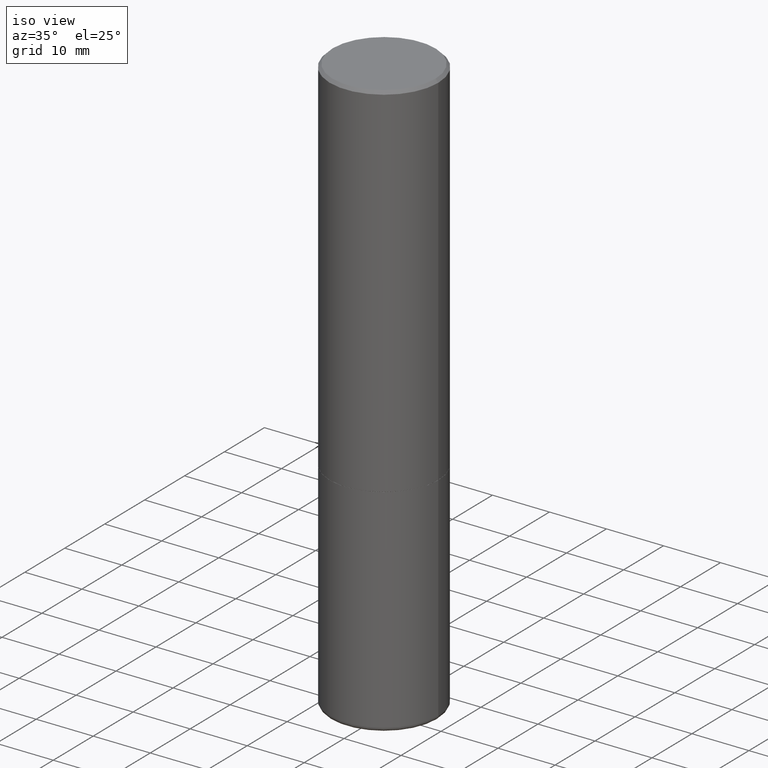
[diagram: clean part render]
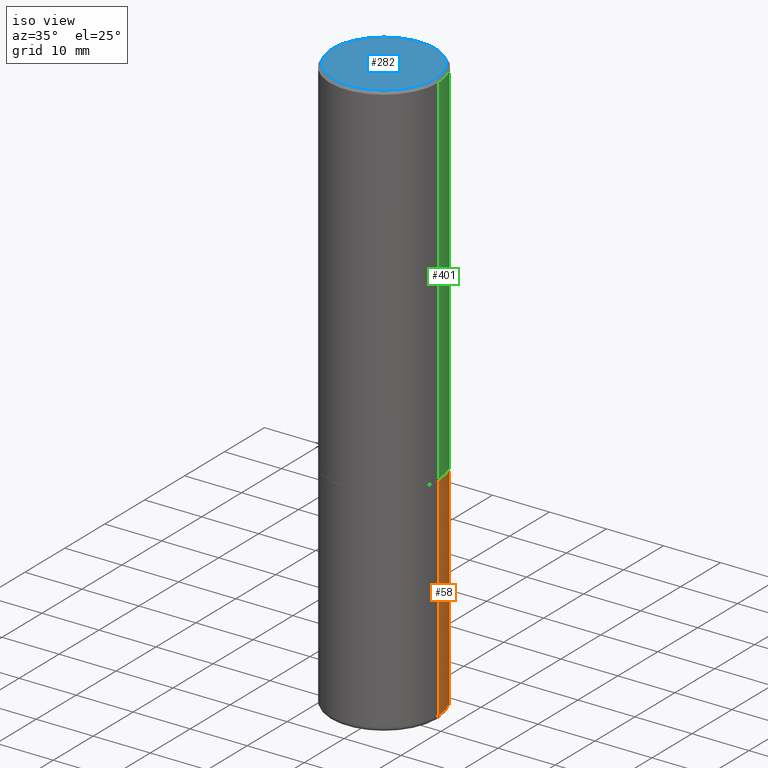
[diagram: same view with three faces highlighted in distinct colors, each labeled with its STEP entity id]
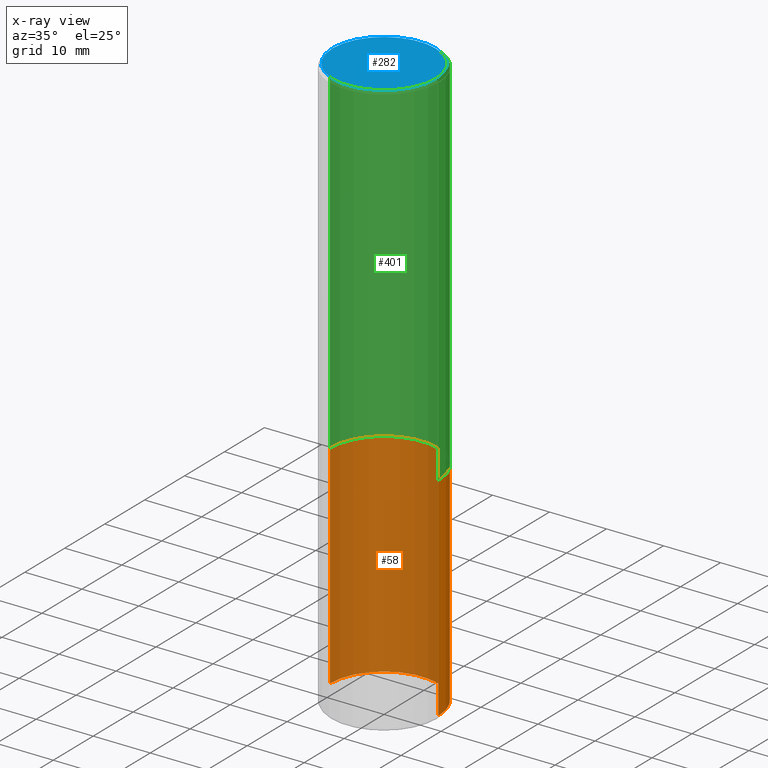
[diagram: x-ray of the same camera — body ghosted, the three highlighted faces saturated]
A machine part, iso view with three faces highlighted in distinct colors.
The next image is the same camera in x-ray (body ghosted, the three faces saturated) — at least one of them is partly hidden behind the body in this view.
Their STEP definitions:

[orange] entity #58 — the highlighted cylindrical surface (partial cylindrical patch) has radius 9.525 mm, axis along (-0, 0, 1).
#6 = VECTOR ( 'NONE', #188, 39.37007874015748143 ) ;
#11 = CARTESIAN_POINT ( 'NONE',  ( 6.113672015462842613E-29, -8.728703347107864943E-15, -2.500000000000000000 ) ) ;
#18 = CIRCLE ( 'NONE', #327, 0.3750000000000000555 ) ;
#23 = CARTESIAN_POINT ( 'NONE',  ( 0.3750000000000000555, -2.618611004132350016E-15, 1.828566290923476203E-29 ) ) ;
#48 = DIRECTION ( 'NONE',  ( -2.445468806185136877E-29, 3.491481338843145188E-15, 1.000000000000000000 ) ) ;
#51 = EDGE_CURVE ( 'NONE', #283, #244, #78, .T. ) ;
#55 = VERTEX_POINT ( 'NONE', #367 ) ;
#58 = ADVANCED_FACE ( 'NONE', ( #59 ), #127, .T. ) ;
#59 = FACE_OUTER_BOUND ( 'NONE', #77, .T. ) ;
#62 = CARTESIAN_POINT ( 'NONE',  ( 9.708611703455221728E-29, -1.386132446382218587E-14, -3.970041113957362811 ) ) ;
#66 = CARTESIAN_POINT ( 'NONE',  ( 0.3750000000000000555, -1.134731435124021338E-14, -2.500000000000000000 ) ) ;
#77 = EDGE_LOOP ( 'NONE', ( #289, #178, #345, #422 ) ) ;
#78 = CIRCLE ( 'NONE', #391, 0.3750000000000000555 ) ;
#85 = DIRECTION ( 'NONE',  ( 1.000000000000000000, -6.982962677686265922E-15, 4.876176775795935793E-29 ) ) ;
#106 = DIRECTION ( 'NONE',  ( 1.000000000000000000, -6.982962677686264344E-15, 0.000000000000000000 ) ) ;
#112 = EDGE_CURVE ( 'NONE', #283, #329, #224, .T. ) ;
#127 = CYLINDRICAL_SURFACE ( 'NONE', #189, 0.3750000000000000555 ) ;
#131 = DIRECTION ( 'NONE',  ( -2.445468806185136597E-29, 3.491481338843145583E-15, 1.000000000000000000 ) ) ;
#160 = VECTOR ( 'NONE', #48, 39.37007874015748143 ) ;
#165 = CARTESIAN_POINT ( 'NONE',  ( 0.000000000000000000, 0.000000000000000000, 0.000000000000000000 ) ) ;
#178 = ORIENTED_EDGE ( 'NONE', *, *, #420, .T. ) ;
#188 = DIRECTION ( 'NONE',  ( -2.445468806185136877E-29, 3.491481338843145188E-15, 1.000000000000000000 ) ) ;
#189 = AXIS2_PLACEMENT_3D ( 'NONE', #165, #331, #85 ) ;
#224 = LINE ( 'NONE', #23, #6 ) ;
#234 = DIRECTION ( 'NONE',  ( 1.000000000000000000, -6.982962677686266711E-15, 0.000000000000000000 ) ) ;
#240 = DIRECTION ( 'NONE',  ( -2.445468806185136597E-29, 3.491481338843145583E-15, 1.000000000000000000 ) ) ;
#244 = VERTEX_POINT ( 'NONE', #418 ) ;
#281 = CARTESIAN_POINT ( 'NONE',  ( -0.3750000000000000555, 2.664535259100376091E-15, -1.844600658845589598E-29 ) ) ;
#283 = VERTEX_POINT ( 'NONE', #421 ) ;
#289 = ORIENTED_EDGE ( 'NONE', *, *, #51, .T. ) ;
#290 = EDGE_CURVE ( 'NONE', #329, #55, #18, .T. ) ;
#327 = AXIS2_PLACEMENT_3D ( 'NONE', #11, #240, #106 ) ;
#329 = VERTEX_POINT ( 'NONE', #66 ) ;
#331 = DIRECTION ( 'NONE',  ( -2.445468806185136597E-29, 3.491481338843145583E-15, 1.000000000000000000 ) ) ;
#345 = ORIENTED_EDGE ( 'NONE', *, *, #290, .F. ) ;
#367 = CARTESIAN_POINT ( 'NONE',  ( -0.3750000000000000555, -8.630478646364648921E-15, -2.500000000000000000 ) ) ;
#387 = LINE ( 'NONE', #281, #160 ) ;
#391 = AXIS2_PLACEMENT_3D ( 'NONE', #62, #131, #234 ) ;
#418 = CARTESIAN_POINT ( 'NONE',  ( -0.3750000000000000555, -8.630478646364648921E-15, -3.970041113957362811 ) ) ;
#420 = EDGE_CURVE ( 'NONE', #244, #55, #387, .T. ) ;
#421 = CARTESIAN_POINT ( 'NONE',  ( 0.3750000000000000555, -1.647993546795453747E-14, -3.970041113957362811 ) ) ;
#422 = ORIENTED_EDGE ( 'NONE', *, *, #112, .F. ) ;

[blue] entity #282 — the highlighted planar face has unit normal (0, -0, -1).
#17 = CARTESIAN_POINT ( 'NONE',  ( 0.3549999999999997047, -2.538996582575038287E-15, 4.268512490117958041E-18 ) ) ;
#32 = AXIS2_PLACEMENT_3D ( 'NONE', #411, #314, #67 ) ;
#36 = VERTEX_POINT ( 'NONE', #298 ) ;
#52 = ORIENTED_EDGE ( 'NONE', *, *, #350, .T. ) ;
#67 = DIRECTION ( 'NONE',  ( -1.000000000000000000, 6.982962677686265922E-15, -4.876176775795935793E-29 ) ) ;
#148 = AXIS2_PLACEMENT_3D ( 'NONE', #425, #156, #219 ) ;
#156 = DIRECTION ( 'NONE',  ( -2.445468806185136597E-29, 3.491481338843145583E-15, 1.000000000000000000 ) ) ;
#219 = DIRECTION ( 'NONE',  ( 1.000000000000000000, -6.982962677686265922E-15, 4.876231632511992107E-29 ) ) ;
#242 = DIRECTION ( 'NONE',  ( 1.000000000000000000, -6.982962677686265922E-15, 4.876231632511992107E-29 ) ) ;
#269 = CARTESIAN_POINT ( 'NONE',  ( -1.043851414335219820E-46, 1.490343170380447200E-32, 4.268512490100411279E-18 ) ) ;
#271 = PLANE ( 'NONE',  #32 ) ;
#282 = ADVANCED_FACE ( 'NONE', ( #378 ), #271, .F. ) ;
#298 = CARTESIAN_POINT ( 'NONE',  ( -0.3549999999999997047, 2.513866563967053491E-15, 4.268512490082953109E-18 ) ) ;
#314 = DIRECTION ( 'NONE',  ( 2.438088387897960049E-29, -3.491481338843145188E-15, -1.000000000000000000 ) ) ;
#319 = ORIENTED_EDGE ( 'NONE', *, *, #397, .T. ) ;
#340 = CIRCLE ( 'NONE', #148, 0.3549999999999997047 ) ;
#350 = EDGE_CURVE ( 'NONE', #36, #426, #354, .T. ) ;
#354 = CIRCLE ( 'NONE', #423, 0.3549999999999997047 ) ;
#376 = DIRECTION ( 'NONE',  ( -2.445468806185136597E-29, 3.491481338843145583E-15, 1.000000000000000000 ) ) ;
#378 = FACE_OUTER_BOUND ( 'NONE', #432, .T. ) ;
#397 = EDGE_CURVE ( 'NONE', #426, #36, #340, .T. ) ;
#411 = CARTESIAN_POINT ( 'NONE',  ( 2.478951750578622237E-15, 0.3549999999999997047, -1.237341619044265441E-15 ) ) ;
#423 = AXIS2_PLACEMENT_3D ( 'NONE', #269, #376, #242 ) ;
#425 = CARTESIAN_POINT ( 'NONE',  ( -1.043851414335219820E-46, 1.490343170380447200E-32, 4.268512490100411279E-18 ) ) ;
#426 = VERTEX_POINT ( 'NONE', #17 ) ;
#432 = EDGE_LOOP ( 'NONE', ( #52, #319 ) ) ;

[green] entity #401 — the highlighted cylindrical surface (partial cylindrical patch) has radius 9.525 mm, axis along (-0, 0, 1).
#5 = VERTEX_POINT ( 'NONE', #251 ) ;
#21 = CARTESIAN_POINT ( 'NONE',  ( -0.3749999999999999445, -1.732985487172565737E-15, -2.499000000000000998 ) ) ;
#54 = AXIS2_PLACEMENT_3D ( 'NONE', #403, #192, #90 ) ;
#69 = EDGE_LOOP ( 'NONE', ( #285, #313, #124, #326 ) ) ;
#79 = VERTEX_POINT ( 'NONE', #21 ) ;
#90 = DIRECTION ( 'NONE',  ( 1.000000000000000000, -6.982962677686266711E-15, 0.000000000000000000 ) ) ;
#94 = CIRCLE ( 'NONE', #54, 0.3749999999999996669 ) ;
#99 = EDGE_CURVE ( 'NONE', #5, #157, #304, .T. ) ;
#115 = FACE_OUTER_BOUND ( 'NONE', #69, .T. ) ;
#124 = ORIENTED_EDGE ( 'NONE', *, *, #176, .F. ) ;
#157 = VERTEX_POINT ( 'NONE', #259 ) ;
#159 = CARTESIAN_POINT ( 'NONE',  ( 0.3749999999999998335, -2.618611004132348439E-15, 1.828566290923475082E-29 ) ) ;
#166 = EDGE_CURVE ( 'NONE', #5, #79, #222, .T. ) ;
#169 = DIRECTION ( 'NONE',  ( -2.445468806185136877E-29, 3.491481338843145188E-15, 1.000000000000000000 ) ) ;
#175 = VERTEX_POINT ( 'NONE', #365 ) ;
#176 = EDGE_CURVE ( 'NONE', #157, #175, #94, .T. ) ;
#177 = CARTESIAN_POINT ( 'NONE',  ( -0.3749999999999998335, 2.664535259100374514E-15, -1.844600658845588757E-29 ) ) ;
#184 = VECTOR ( 'NONE', #442, 39.37007874015748143 ) ;
#192 = DIRECTION ( 'NONE',  ( -2.445468806185136597E-29, 3.491481338843145583E-15, 1.000000000000000000 ) ) ;
#204 = VECTOR ( 'NONE', #169, 39.37007874015748143 ) ;
#222 = CIRCLE ( 'NONE', #230, 0.3750000000000000555 ) ;
#230 = AXIS2_PLACEMENT_3D ( 'NONE', #369, #400, #438 ) ;
#251 = CARTESIAN_POINT ( 'NONE',  ( 0.3750000000000000555, -1.134382286990137353E-14, -2.499000000000000998 ) ) ;
#253 = AXIS2_PLACEMENT_3D ( 'NONE', #359, #386, #278 ) ;
#259 = CARTESIAN_POINT ( 'NONE',  ( 0.3749999999999996669, -2.642516375941185268E-15, -0.02000000000000001776 ) ) ;
#267 = EDGE_CURVE ( 'NONE', #79, #175, #277, .T. ) ;
#277 = LINE ( 'NONE', #177, #204 ) ;
#278 = DIRECTION ( 'NONE',  ( 1.000000000000000000, -6.982962677686265922E-15, 4.876176775795935793E-29 ) ) ;
#285 = ORIENTED_EDGE ( 'NONE', *, *, #166, .T. ) ;
#304 = LINE ( 'NONE', #159, #184 ) ;
#313 = ORIENTED_EDGE ( 'NONE', *, *, #267, .T. ) ;
#317 = CYLINDRICAL_SURFACE ( 'NONE', #253, 0.3749999999999998335 ) ;
#326 = ORIENTED_EDGE ( 'NONE', *, *, #99, .F. ) ;
#359 = CARTESIAN_POINT ( 'NONE',  ( 0.000000000000000000, 0.000000000000000000, 0.000000000000000000 ) ) ;
#365 = CARTESIAN_POINT ( 'NONE',  ( -0.3749999999999996669, 2.548781377355484746E-15, -0.02000000000000001776 ) ) ;
#369 = CARTESIAN_POINT ( 'NONE',  ( 6.111226546656659252E-29, -8.725211865769023513E-15, -2.499000000000000998 ) ) ;
#386 = DIRECTION ( 'NONE',  ( -2.445468806185136597E-29, 3.491481338843145583E-15, 1.000000000000000000 ) ) ;
#400 = DIRECTION ( 'NONE',  ( -2.445468806185136597E-29, 3.491481338843145583E-15, 1.000000000000000000 ) ) ;
#401 = ADVANCED_FACE ( 'NONE', ( #115 ), #317, .T. ) ;
#403 = CARTESIAN_POINT ( 'NONE',  ( 4.890937612370276662E-31, -6.982962677686296539E-17, -0.02000000000000001776 ) ) ;
#438 = DIRECTION ( 'NONE',  ( 1.000000000000000000, -6.982962677686264344E-15, 0.000000000000000000 ) ) ;
#442 = DIRECTION ( 'NONE',  ( -2.445468806185136877E-29, 3.491481338843145188E-15, 1.000000000000000000 ) ) ;